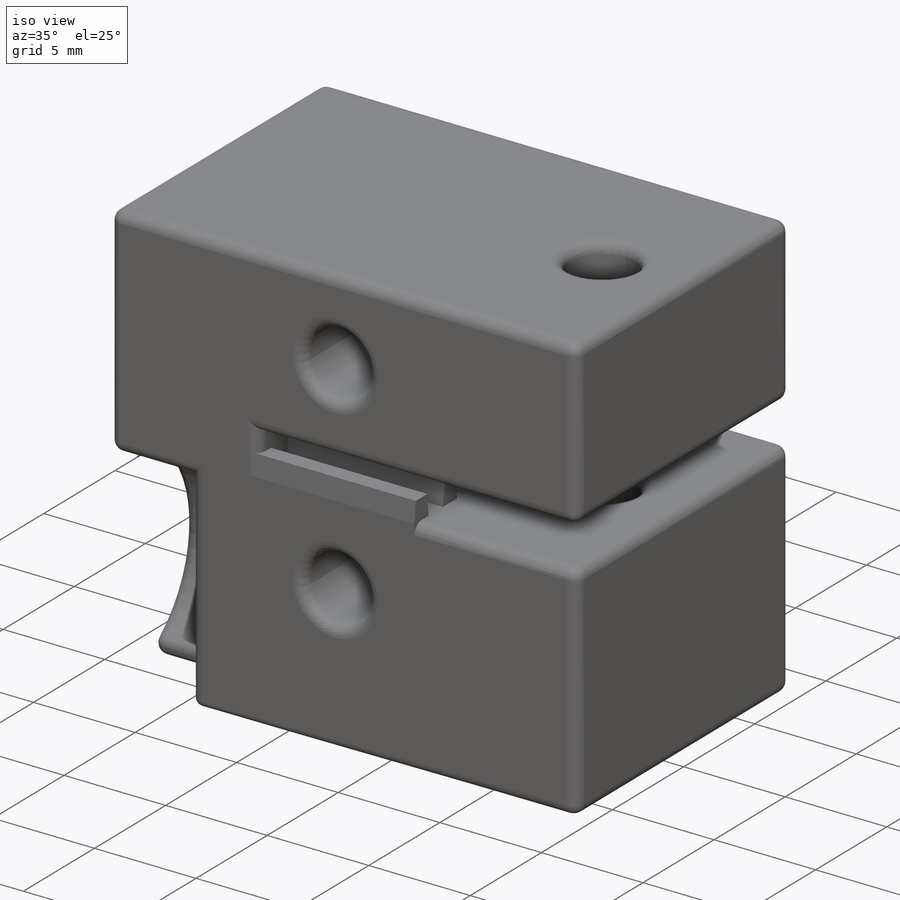
[diagram: iso view]
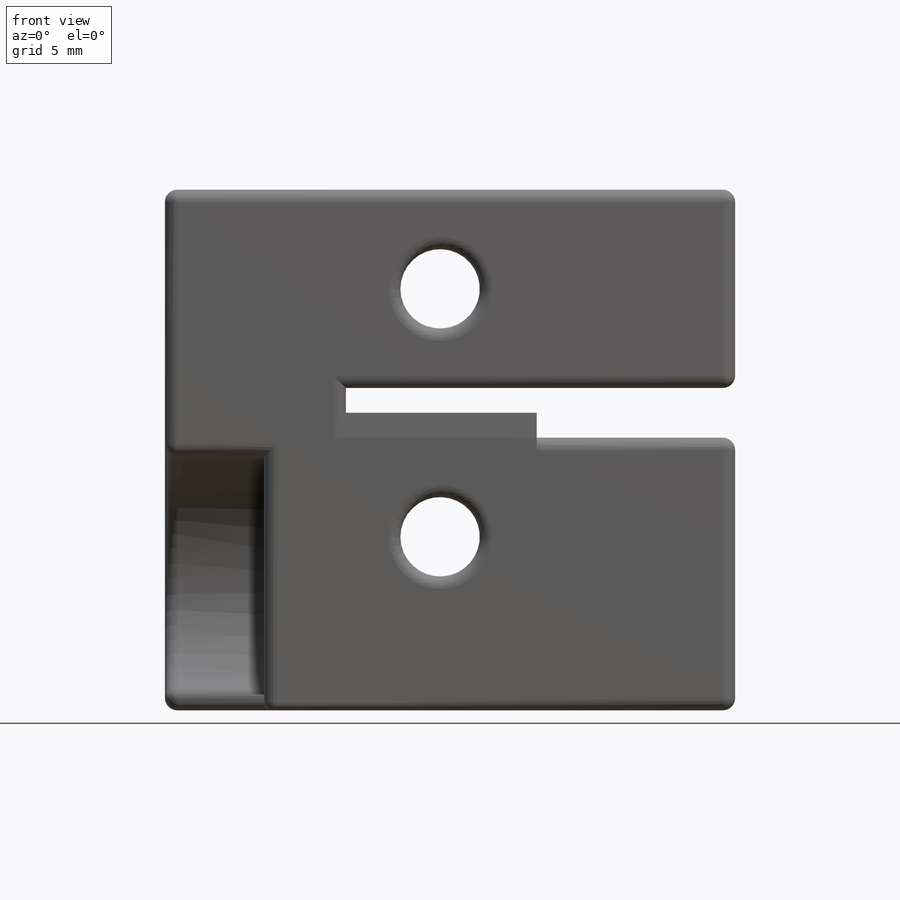
[diagram: front view]
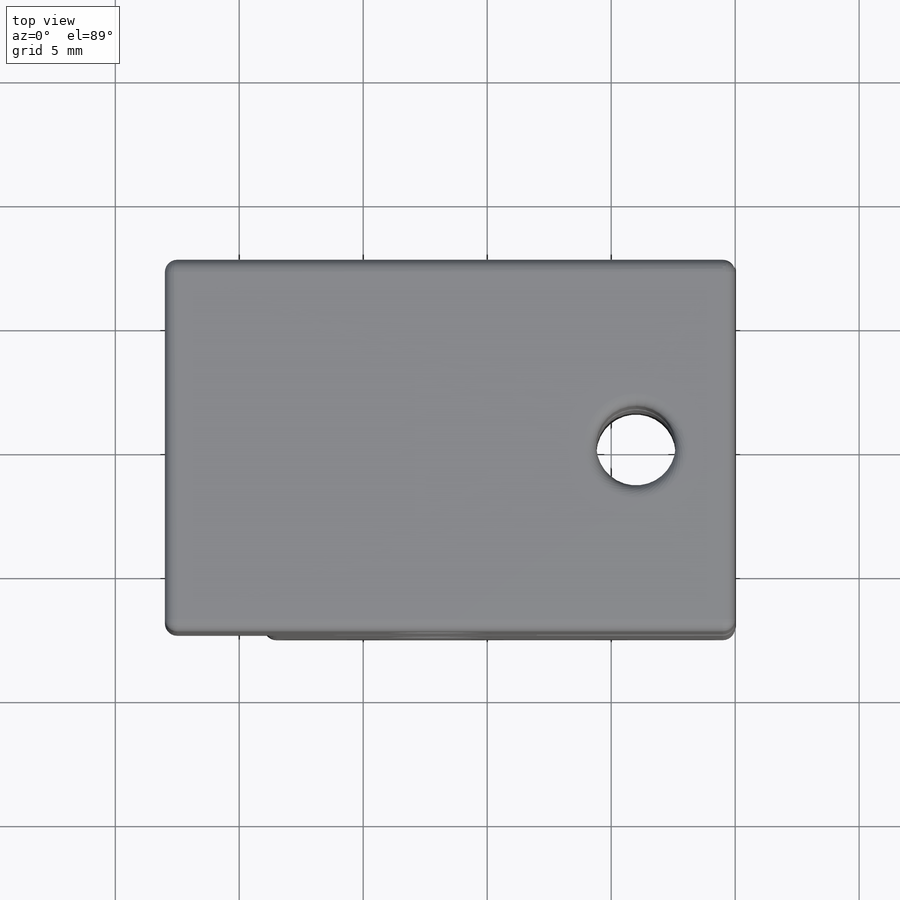
[diagram: top view]
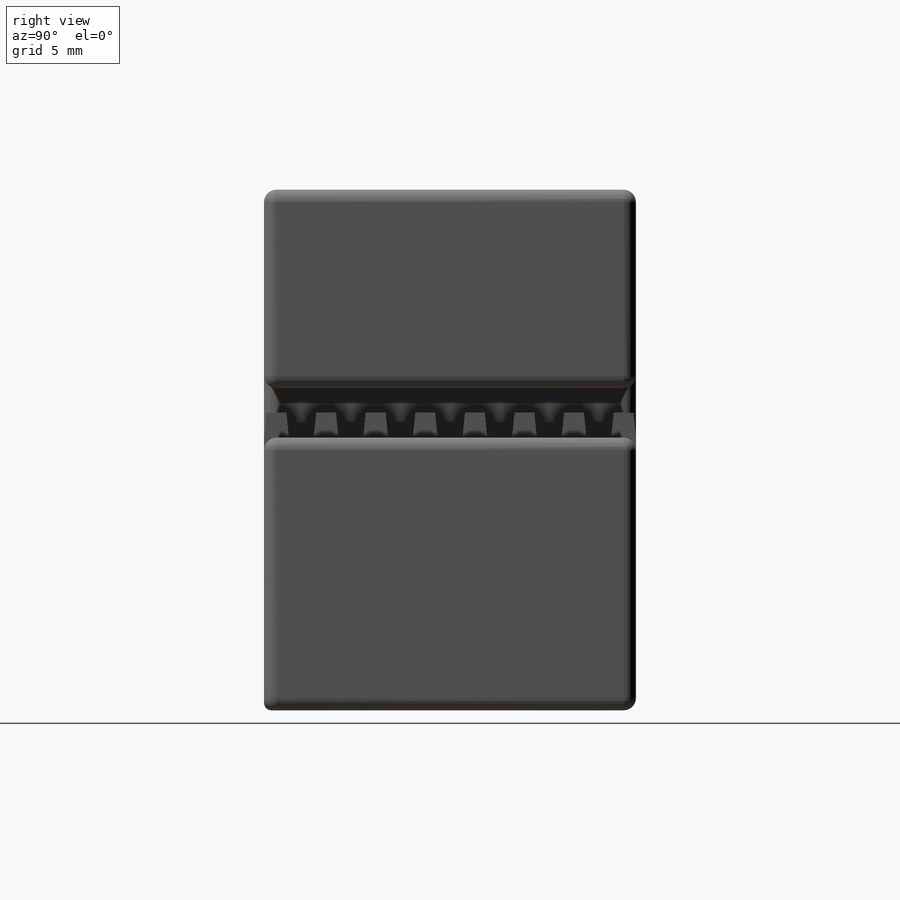
[diagram: right view]
SOLIDWORKS PART (.sldprt)
format: sldprt  version: not decoded by parser v0  size: 613,888 bytes
history: native  units: mm
features: sketch x4, fillet x3, extrude x2, cut_extrude x2, material x1 (+13 scaffold rows collapsed)
feature tree (25):
  scaffold x13  (default folders/planes/origin — collapsed)
  material  "ABS"
  sketch  "Sketch1"  dims[c1.D1=22.0mm c1.D8=22.0mm c1.D9=22.0mm c1.D12=7.0mm c1.D14=3.2mm c1.D15=3.2mm c1.D16=3.2mm c1.D17=11.4mm c1.D18=11.4mm c1.D10=4.0mm c1.D2=23.0mm c1.D3=40.0mm c1.D4=11.0mm c1.D5=11.0mm c1.D6=8.0mm c1.D7=2.0mm c2.D8=34.0mm c2.D9=5.0mm c2.D10=19.0mm c2.D11=4.0mm c2.D13=15.7mm c2.D15=10.0mm c2.D16=11.9mm c2.D18=2.0mm c3.D11=23.0mm c3.D12=11.0mm c3.D18=18.0mm c3.D2=17.0mm c3.D3=11.0mm]
  extrude  "Boss-Extrude1"  Depth=15mm
  sketch  "Sketch6"  dims[c1.D1=10.5mm c1.D2=8.05mm c1.D3=8.05mm c2.D2=25.0mm c2.D3=17.0mm c3.D2=16.0mm]
  cut_extrude  "Cut-Extrude5"  Depth=4mm
  sketch  "Sketch9"  dims[D1=0.8mm D2=1.0mm D3=0.0mm D4=1.0mm D5=8.0]
  extrude  "Boss-Extrude2"  Depth=7.7mm
  sketch  "Sketch10"  dims[D1=3.2mm D2=4.0mm]
  cut_extrude  "Cut-Extrude8"  [1 undecoded]
  fillet  "Fillet1"  Radius=0.5mm
  fillet  "VarFillet3"  Radius=0.5mm
  fillet  "VarFillet4"  Radius=0.5mm
decode coverage: 10 of 11 modeling features carry decoded parameters
note: 1 parameter value undecoded
note: suppression state not decoded; provenance and decode notes live in map.json
